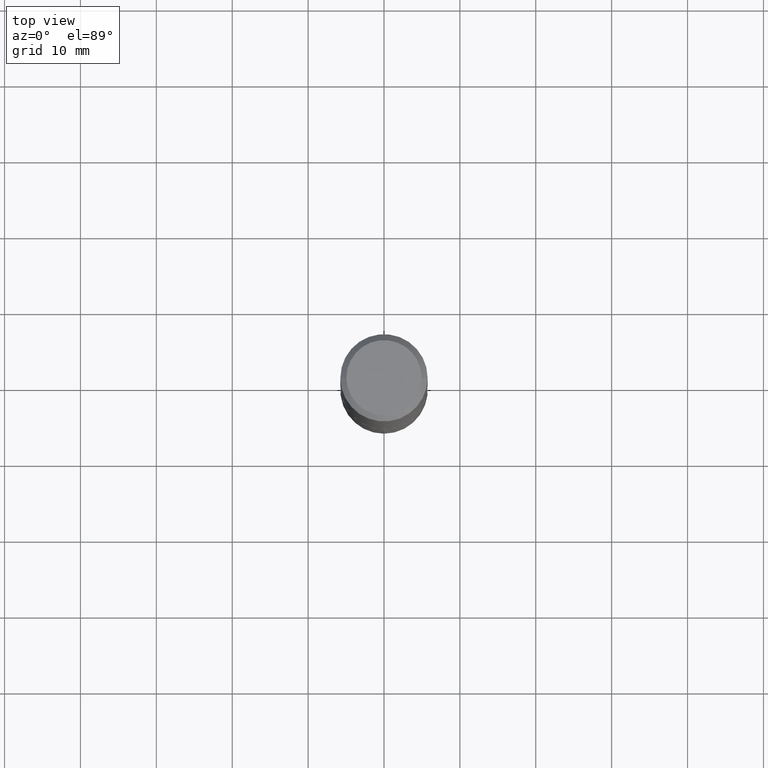
[diagram: clean part render]
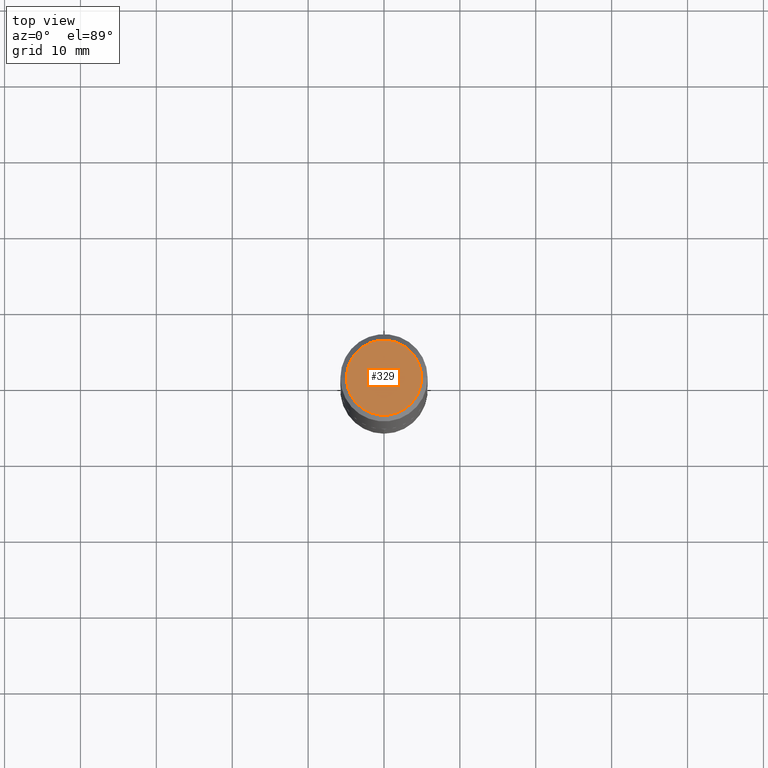
[diagram: same view with one face highlighted and labeled with its STEP entity id]
A machine part, top view. The second image highlights one B-rep face of the part: STEP entity #329.
In plain terms, the highlighted planar face has unit normal (0, -0, -1).
Its self-contained STEP definition (entity closure, byte-faithful):
#21 = ORIENTED_EDGE ( 'NONE', *, *, #331, .T. ) ;
#37 = PLANE ( 'NONE',  #91 ) ;
#45 = EDGE_LOOP ( 'NONE', ( #21, #354 ) ) ;
#61 = CARTESIAN_POINT ( 'NONE',  ( -0.1951499999999999624, 1.417279562469898159E-15, 1.206277097150418490E-18 ) ) ;
#91 = AXIS2_PLACEMENT_3D ( 'NONE', #366, #148, #121 ) ;
#121 = DIRECTION ( 'NONE',  ( -1.000000000000000000, 6.982962677686265922E-15, -4.876176775795935793E-29 ) ) ;
#148 = DIRECTION ( 'NONE',  ( 2.438088387897960049E-29, -3.491481338843145188E-15, -1.000000000000000000 ) ) ;
#181 = VERTEX_POINT ( 'NONE', #268 ) ;
#182 = CIRCLE ( 'NONE', #386, 0.1951499999999999624 ) ;
#213 = CARTESIAN_POINT ( 'NONE',  ( -2.949913012720677696E-47, 4.211693974208505914E-33, 1.206277097160139237E-18 ) ) ;
#232 = VERTEX_POINT ( 'NONE', #61 ) ;
#243 = DIRECTION ( 'NONE',  ( 1.000000000000000000, -6.982962677686267499E-15, 4.876204817626621621E-29 ) ) ;
#244 = DIRECTION ( 'NONE',  ( 1.000000000000000000, -6.982962677686267499E-15, 4.876204817626621621E-29 ) ) ;
#268 = CARTESIAN_POINT ( 'NONE',  ( 0.1951499999999999624, -1.500575861399718873E-15, 1.206277097170150798E-18 ) ) ;
#309 = DIRECTION ( 'NONE',  ( -2.445468806185136597E-29, 3.491481338843145583E-15, 1.000000000000000000 ) ) ;
#319 = AXIS2_PLACEMENT_3D ( 'NONE', #213, #370, #244 ) ;
#320 = FACE_OUTER_BOUND ( 'NONE', #45, .T. ) ;
#329 = ADVANCED_FACE ( 'NONE', ( #320 ), #37, .F. ) ;
#331 = EDGE_CURVE ( 'NONE', #232, #181, #182, .T. ) ;
#334 = CIRCLE ( 'NONE', #319, 0.1951499999999999624 ) ;
#354 = ORIENTED_EDGE ( 'NONE', *, *, #355, .T. ) ;
#355 = EDGE_CURVE ( 'NONE', #181, #232, #334, .T. ) ;
#366 = CARTESIAN_POINT ( 'NONE',  ( -1.474956506360338848E-47, 2.105846987104252957E-33, 6.031385485800696183E-19 ) ) ;
#370 = DIRECTION ( 'NONE',  ( -2.445468806185136597E-29, 3.491481338843145583E-15, 1.000000000000000000 ) ) ;
#386 = AXIS2_PLACEMENT_3D ( 'NONE', #390, #309, #243 ) ;
#390 = CARTESIAN_POINT ( 'NONE',  ( -2.949913012720677696E-47, 4.211693974208505914E-33, 1.206277097160139237E-18 ) ) ;